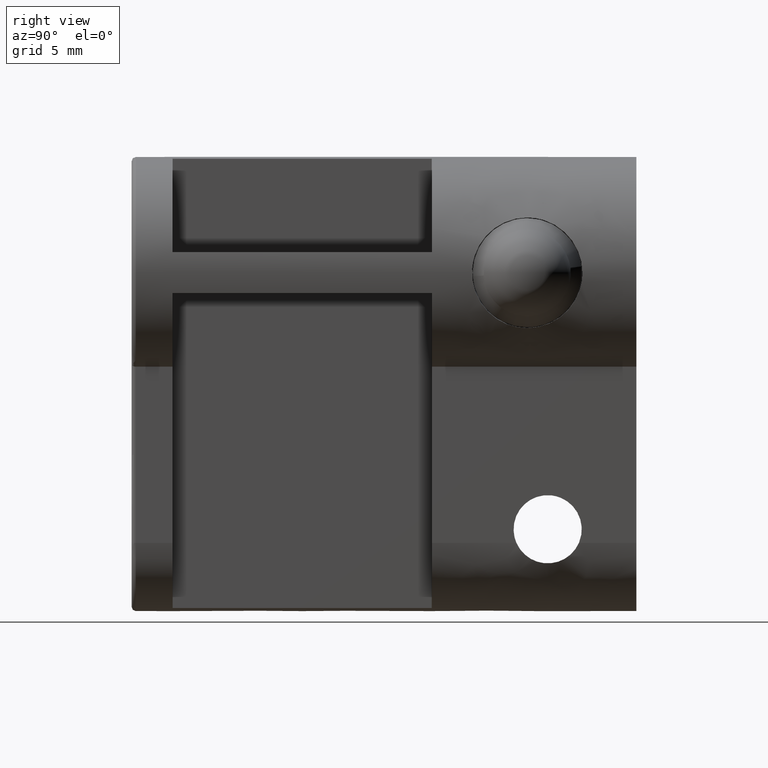
[diagram: clean part render]
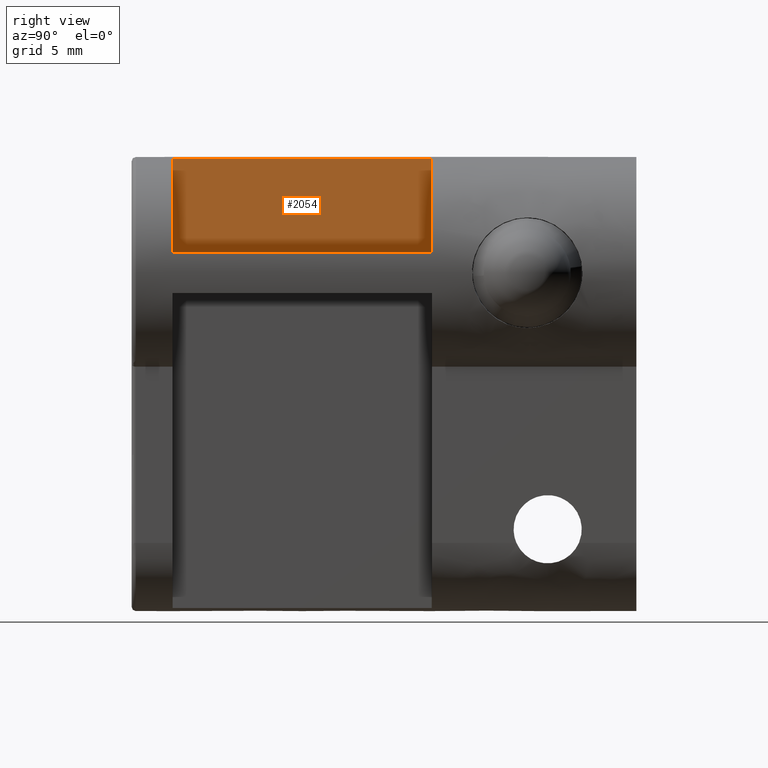
[diagram: same view with one face highlighted and labeled with its STEP entity id]
A machine part, right view. The second image highlights one B-rep face of the part: STEP entity #2054.
In plain terms, the highlighted face is a freeform B-spline surface patch.
Its self-contained STEP definition (entity closure, byte-faithful):
#2019=CARTESIAN_POINT('',(1.500000071246090,2.050950134153842,8.709587735721319));
#2020=CARTESIAN_POINT('',(1.500000071246090,22.949051562728709,8.709587735721319));
#2021=CARTESIAN_POINT('',(1.500000071246090,2.050950134153842,1.157013182434425));
#2022=CARTESIAN_POINT('',(1.500000071246090,22.949051562728709,1.157013182434425));
#2023=B_SPLINE_SURFACE_WITH_KNOTS('',1,1,((#2019,#2021),(#2020,#2022)),.UNSPECIFIED.,.F.,.F.,.U.,(2,2),(2,2),(0.0,20.898101428574869),(0.0,7.552574553286894),.UNSPECIFIED.);
#2024=CARTESIAN_POINT('',(1.500000071246090,3.000000142405610,8.366600662732958));
#2025=VERTEX_POINT('',#2024);
#2026=CARTESIAN_POINT('',(1.500000071246065,3.000000142405610,1.500000071246205));
#2027=VERTEX_POINT('',#2026);
#2028=CARTESIAN_POINT('',(1.500000071246090,3.000000142405610,8.366600662732958));
#2029=CARTESIAN_POINT('',(1.500000071246065,3.000000142405610,1.500000071246205));
#2030=QUASI_UNIFORM_CURVE('',1,(#2028,#2029),.UNSPECIFIED.,.F.,.U.);
#2031=EDGE_CURVE('',#2025,#2027,#2030,.T.);
#2032=ORIENTED_EDGE('',*,*,#2031,.T.);
#2033=CARTESIAN_POINT('',(1.500000071246065,22.000001044857200,1.500000071246205));
#2034=VERTEX_POINT('',#2033);
#2035=CARTESIAN_POINT('',(1.500000071246065,3.000000142405610,1.500000071246205));
#2036=CARTESIAN_POINT('',(1.500000071246065,22.000001044857200,1.500000071246205));
#2037=QUASI_UNIFORM_CURVE('',1,(#2035,#2036),.UNSPECIFIED.,.F.,.U.);
#2038=EDGE_CURVE('',#2027,#2034,#2037,.T.);
#2039=ORIENTED_EDGE('',*,*,#2038,.T.);
#2040=CARTESIAN_POINT('',(1.500000071246090,22.000001044857200,8.366600662732958));
#2041=VERTEX_POINT('',#2040);
#2042=CARTESIAN_POINT('',(1.500000071246065,22.000001044857200,1.500000071246205));
#2043=CARTESIAN_POINT('',(1.500000071246090,22.000001044857200,8.366600662732958));
#2044=QUASI_UNIFORM_CURVE('',1,(#2042,#2043),.UNSPECIFIED.,.F.,.U.);
#2045=EDGE_CURVE('',#2034,#2041,#2044,.T.);
#2046=ORIENTED_EDGE('',*,*,#2045,.T.);
#2047=CARTESIAN_POINT('',(1.500000071246090,3.000000142405610,8.366600662732958));
#2048=CARTESIAN_POINT('',(1.500000071246090,22.000001044857200,8.366600662732958));
#2049=QUASI_UNIFORM_CURVE('',1,(#2047,#2048),.UNSPECIFIED.,.F.,.U.);
#2050=EDGE_CURVE('',#2025,#2041,#2049,.T.);
#2051=ORIENTED_EDGE('',*,*,#2050,.F.);
#2052=EDGE_LOOP('',(#2032,#2039,#2046,#2051));
#2053=FACE_OUTER_BOUND('',#2052,.T.);
#2054=ADVANCED_FACE('',(#2053),#2023,.F.);